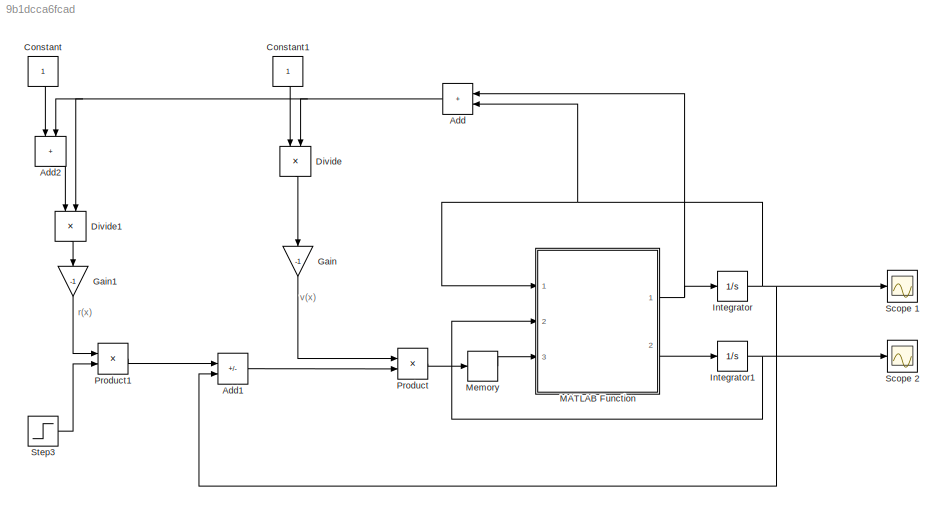
MODEL slx_9b1dcca6fcad
KIND model
CONFIG AbsTol = auto
CONFIG EnableMultiTasking = off
CONFIG FixedStep = auto
CONFIG MaxStep = auto
CONFIG MinStep = auto
CONFIG RelTol = 1e-3
CONFIG SampleTimeConstraint = Unconstrained
CONFIG SolverName = VariableStepAuto
CONFIG StartTime = 0.0
CONFIG StopTime = 10.0
BLOCK [Sum] Add
  IconShape = rectangular
  NameLocation = top
  Ports = [2, 1]
BLOCK [Sum] Add1
  IconShape = rectangular
  Inputs = +-
  Ports = [2, 1]
BLOCK [Sum] Add2
  IconShape = rectangular
  NameLocation = left
  Ports = [2, 1]
BLOCK [Constant] Constant
  NameLocation = left
BLOCK [Constant] Constant1
  NameLocation = left
BLOCK [Product] Divide
  Inputs = */
  NameLocation = left
  Ports = [2, 1]
BLOCK [Product] Divide1
  Inputs = */
  NameLocation = left
  Ports = [2, 1]
BLOCK [Gain] Gain
  Gain = -1
  NameLocation = left
BLOCK [Gain] Gain1
  Gain = -1
  NameLocation = left
BLOCK [Integrator] Integrator
  InitialCondition = 1
  Ports = [1, 1]
BLOCK [Integrator] Integrator1
  InitialCondition = 1
  Ports = [1, 1]
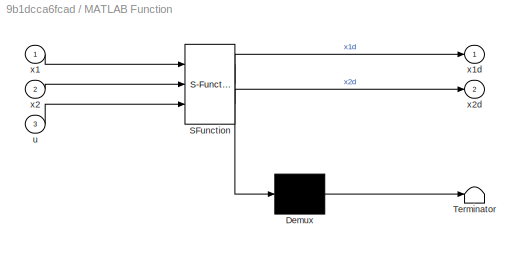
BLOCK [SubSystem] MATLAB Function
  ErrorFcn = Stateflow.Translate.translate
  PermitHierarchicalResolution = ExplicitOnly
  Ports = [3, 2]
  RequestExecContextInheritance = off
  SFBlockType = MATLAB Function
  TreatAsAtomicUnit = on
BLOCK [Demux] MATLAB Function/ Demux 
  Outputs = 1
  Ports = [1, 1]
BLOCK [S-Function] MATLAB Function/ SFunction 
  EnableBusSupport = on
  FunctionName = sf_sfun
  PortCounts = [3 3]
  Ports = [3, 3]
  SFcnIsStateOwnerBlock = off
  SFunctionDeploymentMode = off
  Tag = Stateflow S-Function 2
BLOCK [Terminator] MATLAB Function/ Terminator 
BLOCK [Inport] MATLAB Function/u
  Port = 3
BLOCK [Inport] MATLAB Function/x1
BLOCK [Outport] MATLAB Function/x1d
BLOCK [Inport] MATLAB Function/x2
  Port = 2
BLOCK [Outport] MATLAB Function/x2d
  Port = 2
BLOCK [Memory] Memory
  InitialCondition = 1
  LinearizeMemory = on
BLOCK [Product] Product
  Ports = [2, 1]
BLOCK [Product] Product1
  Ports = [2, 1]
BLOCK [Scope] Scope 1
  Floating = off
  NumInputPorts = 1
  Ports = [1]
  ScopeSpecificationString = Simulink.scopes.TimeScopeBlockCfg('CurrentConfiguration', extmgr.ConfigurationSet(extmgr.Configuration('Core','General UI',true),extmgr.Configuration('Core','Source UI',true),extmgr.Configuration('Sources','WiredSimulink',true),extmgr.Configuration('Visuals','Time Domain',true,'SerializedDisplays',{struct('MinYLimReal','-1.47506','MaxYLimReal','50','YLabelReal','','MinYLimMag','0.00000','MaxYLimMa...<+1401ch>
BLOCK [Scope] Scope 2
  Floating = off
  NumInputPorts = 1
  Ports = [1]
  ScopeSpecificationString = Simulink.scopes.TimeScopeBlockCfg('CurrentConfiguration', extmgr.ConfigurationSet(extmgr.Configuration('Core','General UI',true),extmgr.Configuration('Core','Source UI',true),extmgr.Configuration('Sources','WiredSimulink',true,'DataLoggingVariableName','ScopeData1'),extmgr.Configuration('Visuals','Time Domain',true,'SerializedDisplays',{struct('MinYLimReal','-4.74282','MaxYLimReal','1.63809','YLab...<+1410ch>
BLOCK [Step] Step3
  SampleTime = 0
ANNOTATION (root): r(x)
ANNOTATION (root): v(x)
LINE Add1:1 -> Product:2
LINE Add2:1 -> Divide1:1
NET Add:1 -> Add2:2, Divide1:2, Divide:2
LINE Constant1:1 -> Divide:1
LINE Constant:1 -> Add2:1
LINE Divide1:1 -> Gain1:1
LINE Divide:1 -> Gain:1
LINE Gain1:1 -> Product1:1
LINE Gain:1 -> Product:1
NET Integrator1:1 -> MATLAB Function:2, Scope 2:1
NET Integrator:1 -> Add1:2, Add:2, MATLAB Function:1, Scope 1:1
NET MATLAB Function:1 -> Add:1, Integrator:1
LINE MATLAB Function:2 -> Integrator1:1
LINE Memory:1 -> MATLAB Function:3
LINE Product1:1 -> Add1:1
LINE Product:1 -> Memory:1
LINE Step3:1 -> Product1:2
note: NET lines group one-source signal fan-out (src -> all destinations, sorted); 1:1 wires keep LINE
CHART MATLAB Function states=1 transitions=1
  STATE_LABEL 'eML_blk_kernel()'
  STATE_LABEL 'SCRIPT:\nfunction [x1d,x2d]=fcn(x1,x2,u)\nx1d=(2*x2*x1)/(.06+x2+.3*x2^(2))-x1*u;\nx2d=((-1/.7)*(2*x2*x1))/(.06+x2+.3*x2^(2))-(2-x2)*u;\n'
CHART  states=0 transitions=0
